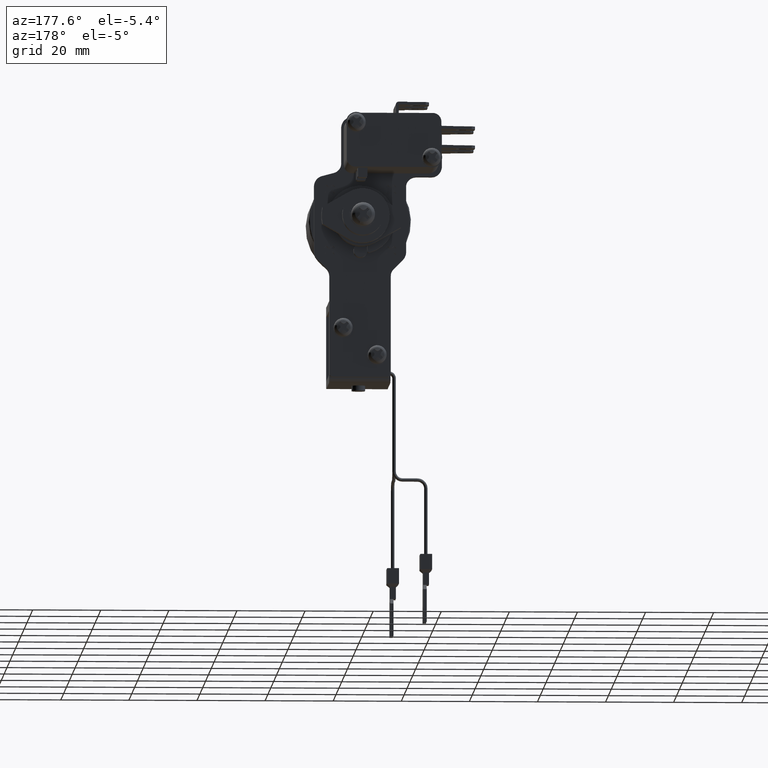
[diagram: clean part render]
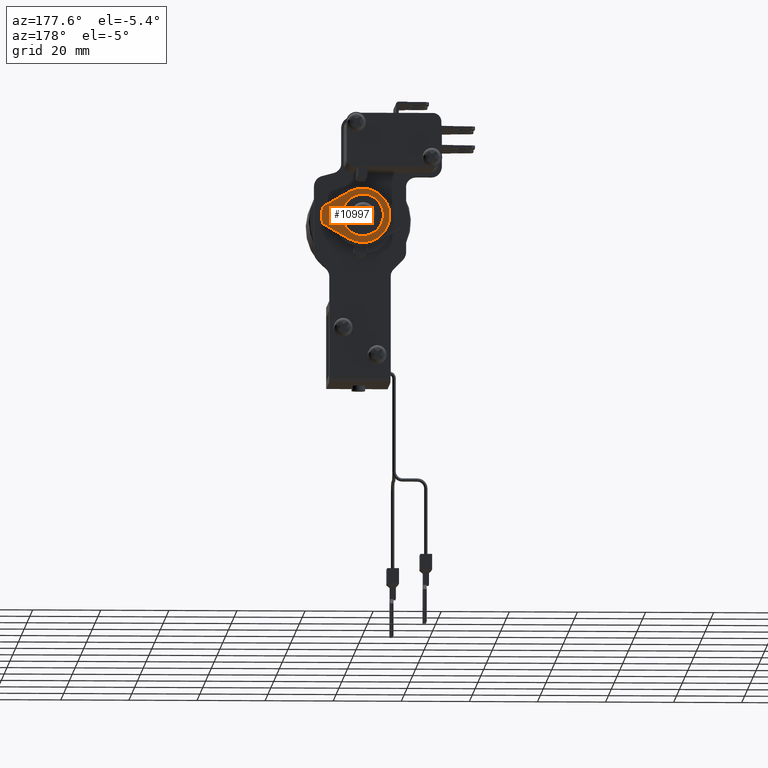
[diagram: same view with one face highlighted and labeled with its STEP entity id]
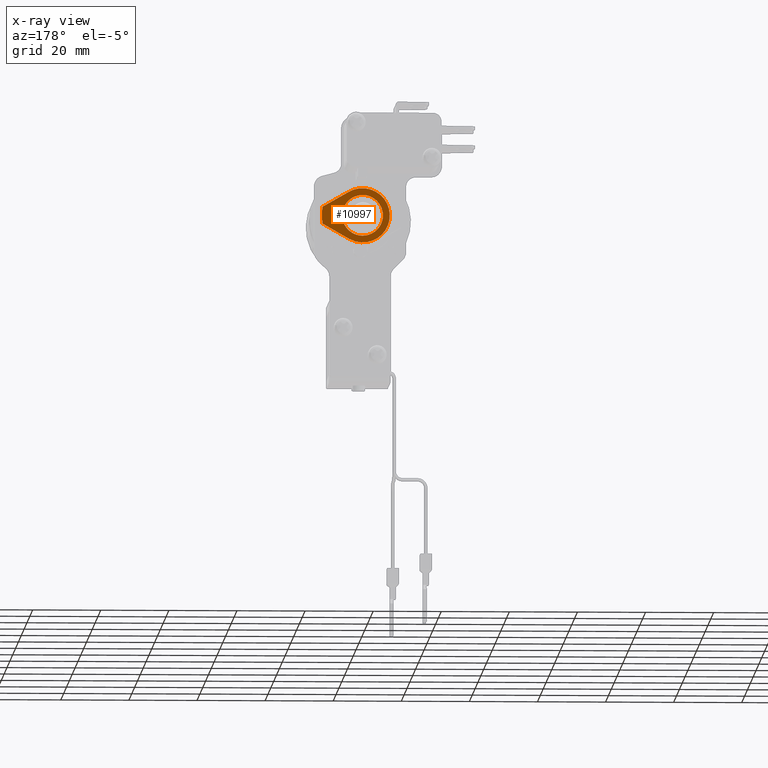
[diagram: x-ray of the same camera — body ghosted, the highlighted face saturated]
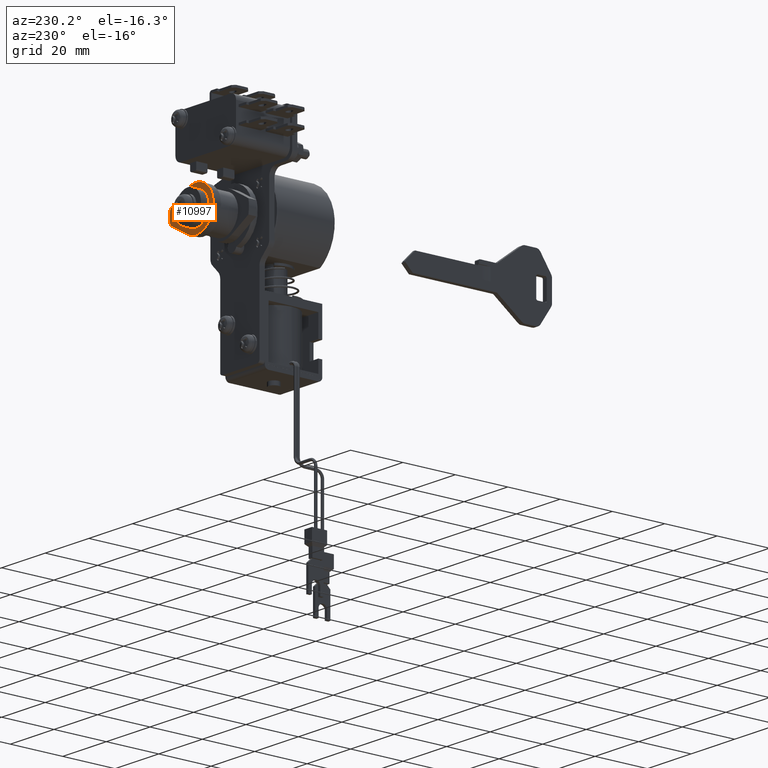
[diagram: same view with one face highlighted and labeled with its STEP entity id]
A machine part, auxiliary view. The second image highlights one B-rep face of the part: STEP entity #10997.
The next image is the same camera in x-ray: the body ghosted, the highlighted face saturated — about 0% of this face is hidden behind the body in this view.
A second angle (auxiliary view) of the same face is appended — the face is thin or edge-on in the first view.
In plain terms, the highlighted face is a freeform B-spline surface patch.
Its self-contained STEP definition (entity closure, byte-faithful):
#10469=CARTESIAN_POINT('',(45.799999999999997,5.958057158141177,-0.708205408283981));
#10470=VERTEX_POINT('',#10469);
#10476=CARTESIAN_POINT('',(45.799999999999997,0.0,6.0));
#10477=VERTEX_POINT('',#10476);
#10478=CARTESIAN_POINT('',(45.799999999999997,5.958057158141177,-0.708205408283981));
#10479=CARTESIAN_POINT('',(45.799999999999997,5.999999999999999,-0.355344718258522));
#10480=CARTESIAN_POINT('',(45.799999999999997,6.0,0.0));
#10481=CARTESIAN_POINT('',(45.799999999999990,6.0,6.0));
#10482=CARTESIAN_POINT('',(45.799999999999997,0.0,6.0));
#10490=(BOUNDED_CURVE()B_SPLINE_CURVE(2,(#10478,#10479,#10480,#10481,#10482),.UNSPECIFIED.,.F.,.U.)B_SPLINE_CURVE_WITH_KNOTS((3,2,3),(0.229562473496161,0.250000000000000,0.500000000000000),.UNSPECIFIED.)CURVE()GEOMETRIC_REPRESENTATION_ITEM()RATIONAL_B_SPLINE_CURVE((0.956026754149698,0.976055948310822,1.0,0.707106781186548,1.0))REPRESENTATION_ITEM(''));
#10491=EDGE_CURVE('',#10470,#10477,#10490,.T.);
#10493=CARTESIAN_POINT('',(45.799999999999997,-5.988808790508989,0.366291237572301));
#10494=VERTEX_POINT('',#10493);
#10495=CARTESIAN_POINT('',(45.799999999999997,0.0,6.0));
#10496=CARTESIAN_POINT('',(45.799999999999976,-5.644236400748350,6.0));
#10497=CARTESIAN_POINT('',(45.800000000000004,-5.988808790508989,0.366291237572301));
#10505=(BOUNDED_CURVE()B_SPLINE_CURVE(2,(#10495,#10496,#10497),.UNSPECIFIED.,.F.,.U.)B_SPLINE_CURVE_WITH_KNOTS((3,3),(0.500000000000000,0.739332962221042),.UNSPECIFIED.)CURVE()GEOMETRIC_REPRESENTATION_ITEM()RATIONAL_B_SPLINE_CURVE((1.0,0.719603993307683,0.976072041628352))REPRESENTATION_ITEM(''));
#10506=EDGE_CURVE('',#10477,#10494,#10505,.T.);
#10580=CARTESIAN_POINT('',(45.799999999999997,0.0,-6.0));
#10581=VERTEX_POINT('',#10580);
#10582=CARTESIAN_POINT('',(45.799999999999990,-5.988808790508989,0.366291237572301));
#10583=CARTESIAN_POINT('',(45.799999999999990,-5.999999999999999,0.183316580155711));
#10584=CARTESIAN_POINT('',(45.799999999999997,-6.0,0.0));
#10585=CARTESIAN_POINT('',(45.799999999999990,-6.0,-6.0));
#10586=CARTESIAN_POINT('',(45.799999999999997,0.0,-6.0));
#10594=(BOUNDED_CURVE()B_SPLINE_CURVE(2,(#10582,#10583,#10584,#10585,#10586),.UNSPECIFIED.,.F.,.U.)B_SPLINE_CURVE_WITH_KNOTS((3,2,3),(0.739332962221042,0.750000000000000,1.0),.UNSPECIFIED.)CURVE()GEOMETRIC_REPRESENTATION_ITEM()RATIONAL_B_SPLINE_CURVE((0.976072041628353,0.987502787878865,1.0,0.707106781186548,1.0))REPRESENTATION_ITEM(''));
#10595=EDGE_CURVE('',#10494,#10581,#10594,.T.);
#10597=CARTESIAN_POINT('',(45.799999999999997,0.0,-6.0));
#10598=CARTESIAN_POINT('',(45.799999999999990,5.329047155089533,-6.000000000000001));
#10599=CARTESIAN_POINT('',(45.800000000000004,5.958057158141177,-0.708205408283981));
#10607=(BOUNDED_CURVE()B_SPLINE_CURVE(2,(#10597,#10598,#10599),.UNSPECIFIED.,.F.,.U.)B_SPLINE_CURVE_WITH_KNOTS((3,3),(0.0,0.229562473496161),.UNSPECIFIED.)CURVE()GEOMETRIC_REPRESENTATION_ITEM()RATIONAL_B_SPLINE_CURVE((1.0,0.731050832875726,0.956026754149698))REPRESENTATION_ITEM(''));
#10608=EDGE_CURVE('',#10581,#10470,#10607,.T.);
#10936=CARTESIAN_POINT('',(45.799999999999997,-12.998999998099411,-8.792963999993493));
#10937=CARTESIAN_POINT('',(45.799999999999997,8.999000499430938,-8.792963999993493));
#10938=CARTESIAN_POINT('',(45.799999999999997,-12.998999998099411,8.792965151981079));
#10939=CARTESIAN_POINT('',(45.799999999999997,8.999000499430938,8.792965151981079));
#10940=B_SPLINE_SURFACE_WITH_KNOTS('',1,1,((#10936,#10938),(#10937,#10939)),.UNSPECIFIED.,.F.,.F.,.U.,(2,2),(2,2),(0.0,21.998000497530349),(0.0,17.585929151974572),.UNSPECIFIED.);
#10941=CARTESIAN_POINT('',(45.799999999999997,-3.974049000000096,-6.943121999999900));
#10942=VERTEX_POINT('',#10941);
#10943=CARTESIAN_POINT('',(45.799999999999997,-3.974049000000096,6.943121999999900));
#10944=VERTEX_POINT('',#10943);
#10945=CARTESIAN_POINT('',(45.799999999999997,-3.974049000000096,-6.943121999999900));
#10946=CARTESIAN_POINT('',(45.799999999999990,1.837180487349004,-10.269306741147870));
#10947=CARTESIAN_POINT('',(45.799999999999997,6.134764442425944,-5.134653370573938));
#10948=CARTESIAN_POINT('',(45.799999999999990,10.432348397502880,-1.301043E-014));
#10949=CARTESIAN_POINT('',(45.799999999999997,6.134764442425956,5.134653370573924));
#10950=CARTESIAN_POINT('',(45.799999999999990,1.837180487349025,10.269306741147870));
#10951=CARTESIAN_POINT('',(45.799999999999997,-3.974049000000096,6.943121999999900));
#10959=(BOUNDED_CURVE()B_SPLINE_CURVE(2,(#10945,#10946,#10947,#10948,#10949,#10950,#10951),.UNSPECIFIED.,.F.,.U.)B_SPLINE_CURVE_WITH_KNOTS((3,2,2,3),(0.0,0.333333333333333,0.666666666666667,1.0),.UNSPECIFIED.)CURVE()GEOMETRIC_REPRESENTATION_ITEM()RATIONAL_B_SPLINE_CURVE((1.0,0.766845555303243,1.0,0.766845555303243,1.0,0.766845555303243,1.0))REPRESENTATION_ITEM(''));
#10960=EDGE_CURVE('',#10942,#10944,#10959,.T.);
#10961=ORIENTED_EDGE('',*,*,#10960,.T.);
#10962=CARTESIAN_POINT('',(45.799999999999997,-11.736694000000000,2.500000000000055));
#10963=VERTEX_POINT('',#10962);
#10964=CARTESIAN_POINT('',(45.799999999999997,-3.974049000000096,6.943121999999900));
#10965=CARTESIAN_POINT('',(45.799999999999997,-11.736694000000000,2.500000000000055));
#10966=QUASI_UNIFORM_CURVE('',1,(#10964,#10965),.UNSPECIFIED.,.F.,.U.);
#10967=EDGE_CURVE('',#10944,#10963,#10966,.T.);
#10968=ORIENTED_EDGE('',*,*,#10967,.T.);
#10969=CARTESIAN_POINT('',(45.799999999999997,-11.736694602184180,-2.499999963012170));
#10970=VERTEX_POINT('',#10969);
#10971=CARTESIAN_POINT('',(45.799999999999997,-11.736694000000000,2.500000000000055));
#10972=CARTESIAN_POINT('',(45.799999999999997,-12.269212507222749,0.000000082628722));
#10973=CARTESIAN_POINT('',(45.799999999999997,-11.736694602184180,-2.499999963012168));
#10981=(BOUNDED_CURVE()B_SPLINE_CURVE(2,(#10971,#10972,#10973),.UNSPECIFIED.,.F.,.U.)CURVE()GEOMETRIC_REPRESENTATION_ITEM()QUASI_UNIFORM_CURVE()RATIONAL_B_SPLINE_CURVE((1.0,0.978057882112298,1.0))REPRESENTATION_ITEM(''));
#10982=EDGE_CURVE('',#10963,#10970,#10981,.T.);
#10983=ORIENTED_EDGE('',*,*,#10982,.T.);
#10984=CARTESIAN_POINT('',(45.799999999999997,-11.736694602184180,-2.499999963012170));
#10985=CARTESIAN_POINT('',(45.799999999999997,-3.974049000000096,-6.943121999999900));
#10986=QUASI_UNIFORM_CURVE('',1,(#10984,#10985),.UNSPECIFIED.,.F.,.U.);
#10987=EDGE_CURVE('',#10970,#10942,#10986,.T.);
#10988=ORIENTED_EDGE('',*,*,#10987,.T.);
#10989=EDGE_LOOP('',(#10961,#10968,#10983,#10988));
#10990=FACE_OUTER_BOUND('',#10989,.T.);
#10991=ORIENTED_EDGE('',*,*,#10506,.F.);
#10992=ORIENTED_EDGE('',*,*,#10491,.F.);
#10993=ORIENTED_EDGE('',*,*,#10608,.F.);
#10994=ORIENTED_EDGE('',*,*,#10595,.F.);
#10995=EDGE_LOOP('',(#10991,#10992,#10993,#10994));
#10996=FACE_BOUND('',#10995,.T.);
#10997=ADVANCED_FACE('',(#10990,#10996),#10940,.T.);